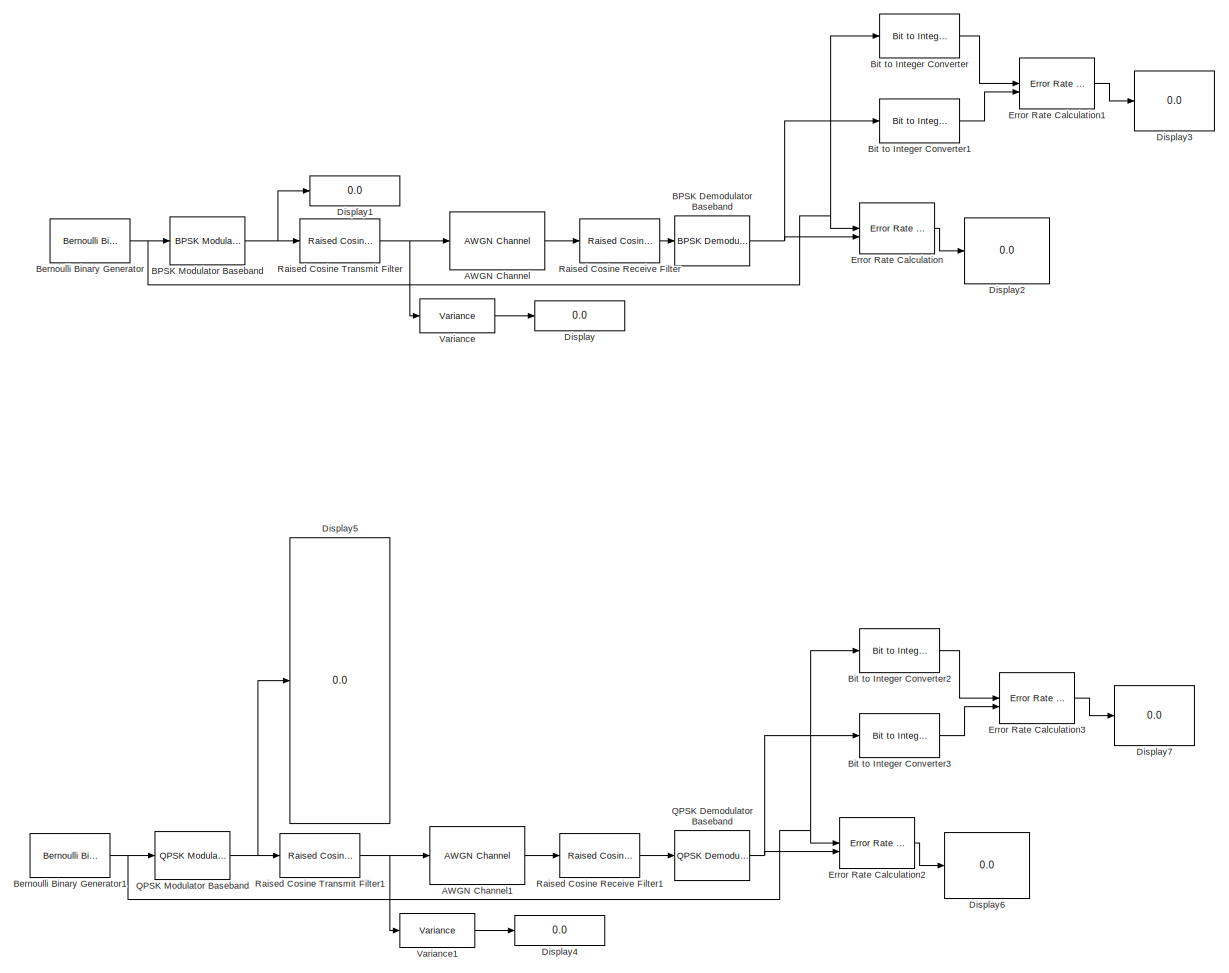
[diagram: root canvas - part 1/1, most of the canvas]
MODEL slx_36a3b810f46d
KIND model
CONFIG AbsTol = auto
CONFIG EnableMultiTasking = off
CONFIG FixedStep = auto
CONFIG MaxStep = auto
CONFIG MinStep = auto
CONFIG RelTol = 1e-3
CONFIG SampleTimeConstraint = Unconstrained
CONFIG SolverName = VariableStepAuto
CONFIG StartTime = 0.0
CONFIG StopTime = 10.0
BLOCK [Reference] AWGN Channel  REF=commchan3/AWGN
Channel
  SourceBlock = commchan3/AWGN\nChannel
  SourceType = AWGN Channel
  UserDataPersistent = on
BLOCK [Reference] AWGN Channel1  REF=commchan3/AWGN
Channel
  SourceBlock = commchan3/AWGN\nChannel
  SourceType = AWGN Channel
  UserDataPersistent = on
BLOCK [Reference] BPSK Demodulator Baseband  REF=commdigbbndpm3/BPSK
Demodulator
Baseband
  LibrarySourceBlock = commhdldigbbndpm/BPSK\nDemodulator\nBaseband
  SourceBlock = commdigbbndpm3/BPSK\nDemodulator\nBaseband
  SourceType = BPSK Demodulator Baseband
BLOCK [Reference] BPSK Modulator Baseband  REF=commdigbbndpm3/BPSK
Modulator
Baseband
  LibrarySourceBlock = commhdldigbbndpm/BPSK\nModulator\nBaseband
  SourceBlock = commdigbbndpm3/BPSK\nModulator\nBaseband
  SourceType = BPSK Modulator Baseband
BLOCK [Reference] Bernoulli Binary Generator  REF=commrandsrc3/Bernoulli Binary
Generator
  SourceBlock = commrandsrc3/Bernoulli Binary\nGenerator
  SourceType = Bernoulli Binary Generator
BLOCK [Reference] Bernoulli Binary Generator1  REF=commrandsrc3/Bernoulli Binary
Generator
  SourceBlock = commrandsrc3/Bernoulli Binary\nGenerator
  SourceType = Bernoulli Binary Generator
BLOCK [Reference] Bit to Integer Converter  REF=simulink/Logic and Bit
Operations/Bit to Integer
Converter
  SourceBlock = simulink/Logic and Bit\nOperations/Bit to Integer\nConverter
  SourceType = Bit to Integer Converter
BLOCK [Reference] Bit to Integer Converter1  REF=simulink/Logic and Bit
Operations/Bit to Integer
Converter
  SourceBlock = simulink/Logic and Bit\nOperations/Bit to Integer\nConverter
  SourceType = Bit to Integer Converter
BLOCK [Reference] Bit to Integer Converter2  REF=simulink/Logic and Bit
Operations/Bit to Integer
Converter
  SourceBlock = simulink/Logic and Bit\nOperations/Bit to Integer\nConverter
  SourceType = Bit to Integer Converter
BLOCK [Reference] Bit to Integer Converter3  REF=simulink/Logic and Bit
Operations/Bit to Integer
Converter
  SourceBlock = simulink/Logic and Bit\nOperations/Bit to Integer\nConverter
  SourceType = Bit to Integer Converter
BLOCK [Display] Display
  Decimation = 1
BLOCK [Display] Display1
  Decimation = 1
BLOCK [Display] Display2
  Decimation = 1
BLOCK [Display] Display3
  Decimation = 1
BLOCK [Display] Display4
  Decimation = 1
BLOCK [Display] Display5
  Decimation = 1
BLOCK [Display] Display6
  Decimation = 1
BLOCK [Display] Display7
  Decimation = 1
BLOCK [Reference] Error Rate Calculation  REF=commsink2/Error Rate
Calculation
  LibrarySourceBlock = commhdlsink/Error Rate\nCalculation
  SourceBlock = commsink2/Error Rate\nCalculation
  SourceType = Error Rate Calculation
BLOCK [Reference] Error Rate Calculation1  REF=commsink2/Error Rate
Calculation
  LibrarySourceBlock = commhdlsink/Error Rate\nCalculation
  SourceBlock = commsink2/Error Rate\nCalculation
  SourceType = Error Rate Calculation
BLOCK [Reference] Error Rate Calculation2  REF=commsink2/Error Rate
Calculation
  LibrarySourceBlock = commhdlsink/Error Rate\nCalculation
  SourceBlock = commsink2/Error Rate\nCalculation
  SourceType = Error Rate Calculation
BLOCK [Reference] Error Rate Calculation3  REF=commsink2/Error Rate
Calculation
  LibrarySourceBlock = commhdlsink/Error Rate\nCalculation
  SourceBlock = commsink2/Error Rate\nCalculation
  SourceType = Error Rate Calculation
BLOCK [Reference] QPSK Demodulator Baseband  REF=commdigbbndpm3/QPSK
Demodulator
Baseband
  LibrarySourceBlock = commhdldigbbndpm/QPSK\nDemodulator\nBaseband
  SourceBlock = commdigbbndpm3/QPSK\nDemodulator\nBaseband
  SourceType = QPSK Demodulator Baseband
BLOCK [Reference] QPSK Modulator Baseband  REF=commdigbbndpm3/QPSK
Modulator
Baseband
  LibrarySourceBlock = commhdldigbbndpm/QPSK\nModulator\nBaseband
  SourceBlock = commdigbbndpm3/QPSK\nModulator\nBaseband
  SourceType = QPSK Modulator Baseband
BLOCK [Reference] Raised Cosine Receive Filter  REF=commfilt2/Raised Cosine
Receive Filter
  LibrarySourceBlock = commhdlfilt/Raised Cosine\nReceive Filter
  SourceBlock = commfilt2/Raised Cosine\nReceive Filter
  SourceType = Raised Cosine Receive Filter
  UserDataPersistent = on
BLOCK [Reference] Raised Cosine Receive Filter1  REF=commfilt2/Raised Cosine
Receive Filter
  LibrarySourceBlock = commhdlfilt/Raised Cosine\nReceive Filter
  SourceBlock = commfilt2/Raised Cosine\nReceive Filter
  SourceType = Raised Cosine Receive Filter
  UserDataPersistent = on
BLOCK [Reference] Raised Cosine Transmit Filter  REF=commfilt2/Raised Cosine
Transmit Filter
  LibrarySourceBlock = commhdlfilt/Raised Cosine\nTransmit Filter
  SourceBlock = commfilt2/Raised Cosine\nTransmit Filter
  SourceType = Raised Cosine Transmit Filter
  UserDataPersistent = on
BLOCK [Reference] Raised Cosine Transmit Filter1  REF=commfilt2/Raised Cosine
Transmit Filter
  LibrarySourceBlock = commhdlfilt/Raised Cosine\nTransmit Filter
  SourceBlock = commfilt2/Raised Cosine\nTransmit Filter
  SourceType = Raised Cosine Transmit Filter
  UserDataPersistent = on
BLOCK [Reference] Variance  REF=dspstat3/Variance
  SourceBlock = dspstat3/Variance
  SourceType = Variance
  UserDataPersistent = on
BLOCK [Reference] Variance1  REF=dspstat3/Variance
  SourceBlock = dspstat3/Variance
  SourceType = Variance
  UserDataPersistent = on
LINE AWGN Channel1:1 -> Raised Cosine Receive Filter1:1
LINE AWGN Channel:1 -> Raised Cosine Receive Filter:1
NET BPSK Demodulator Baseband:1 -> Bit to Integer Converter1:1, Error Rate Calculation:2
NET BPSK Modulator Baseband:1 -> Display1:1, Raised Cosine Transmit Filter:1
NET Bernoulli Binary Generator1:1 -> Bit to Integer Converter2:1, Error Rate Calculation2:1, QPSK Modulator Baseband:1
NET Bernoulli Binary Generator:1 -> BPSK Modulator Baseband:1, Bit to Integer Converter:1, Error Rate Calculation:1
LINE Bit to Integer Converter1:1 -> Error Rate Calculation1:2
LINE Bit to Integer Converter2:1 -> Error Rate Calculation3:1
LINE Bit to Integer Converter3:1 -> Error Rate Calculation3:2
LINE Bit to Integer Converter:1 -> Error Rate Calculation1:1
LINE Error Rate Calculation1:1 -> Display3:1
LINE Error Rate Calculation2:1 -> Display6:1
LINE Error Rate Calculation3:1 -> Display7:1
LINE Error Rate Calculation:1 -> Display2:1
NET QPSK Demodulator Baseband:1 -> Bit to Integer Converter3:1, Error Rate Calculation2:2
NET QPSK Modulator Baseband:1 -> Display5:1, Raised Cosine Transmit Filter1:1
LINE Raised Cosine Receive Filter1:1 -> QPSK Demodulator Baseband:1
LINE Raised Cosine Receive Filter:1 -> BPSK Demodulator Baseband:1
NET Raised Cosine Transmit Filter1:1 -> AWGN Channel1:1, Variance1:1
NET Raised Cosine Transmit Filter:1 -> AWGN Channel:1, Variance:1
LINE Variance1:1 -> Display4:1
LINE Variance:1 -> Display:1
note: NET lines group one-source signal fan-out (src -> all destinations, sorted); 1:1 wires keep LINE
